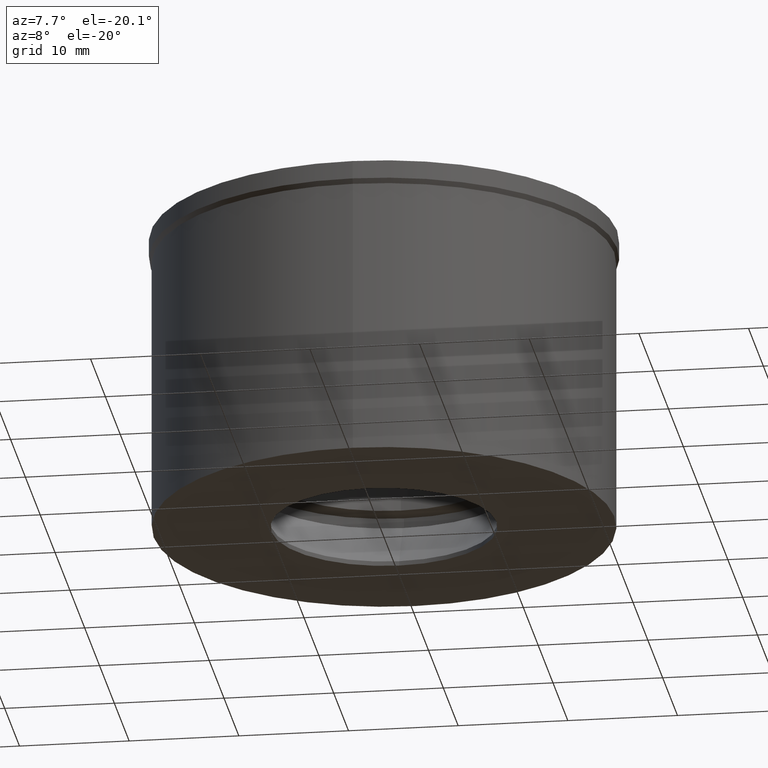
[diagram: clean part render]
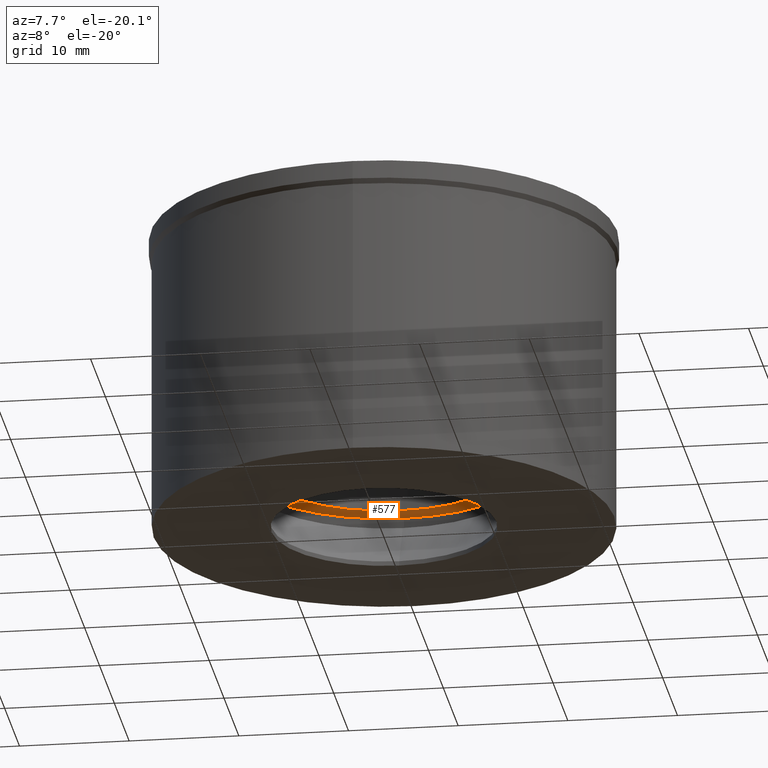
[diagram: same view with one face highlighted and labeled with its STEP entity id]
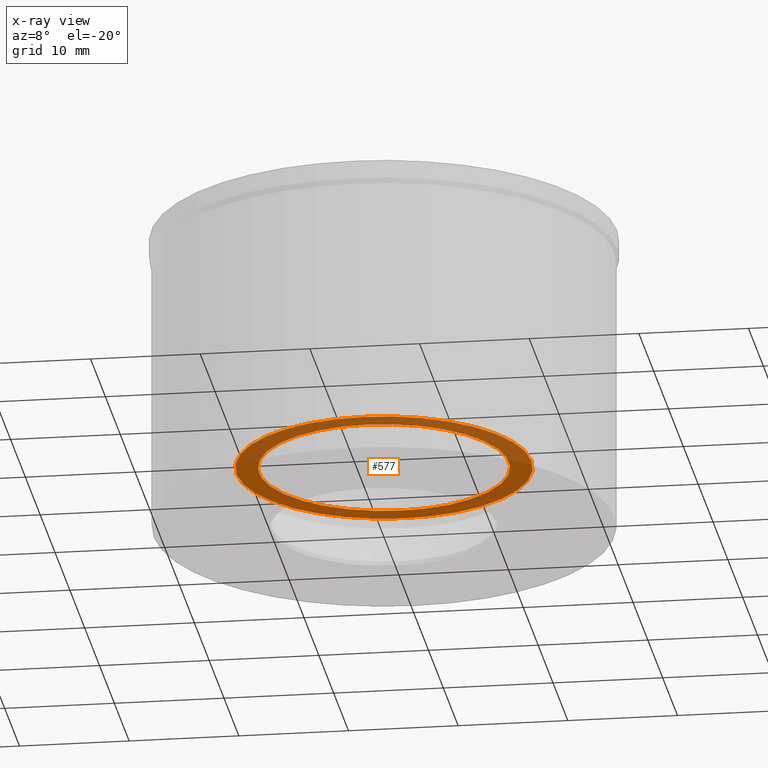
[diagram: x-ray of the same camera — body ghosted, the highlighted face saturated]
A machine part, auxiliary view. The second image highlights one B-rep face of the part: STEP entity #577.
The next image is the same camera in x-ray: the body ghosted, the highlighted face saturated — about 77% of this face is hidden behind the body in this view.
In plain terms, the highlighted planar face has unit normal (0, 0, -1).
Its self-contained STEP definition (entity closure, byte-faithful):
#124=CARTESIAN_POINT('',(0.E0,0.E0,-2.18E1));
#125=DIRECTION('',(0.E0,0.E0,1.E0));
#126=DIRECTION('',(0.E0,-1.E0,0.E0));
#127=AXIS2_PLACEMENT_3D('',#124,#125,#126);
#132=CARTESIAN_POINT('',(0.E0,0.E0,-2.18E1));
#133=DIRECTION('',(0.E0,0.E0,1.E0));
#134=DIRECTION('',(0.E0,1.E0,0.E0));
#135=AXIS2_PLACEMENT_3D('',#132,#133,#134);
#140=CARTESIAN_POINT('',(0.E0,0.E0,-2.18E1));
#141=DIRECTION('',(0.E0,0.E0,-1.E0));
#142=DIRECTION('',(0.E0,-1.E0,0.E0));
#143=AXIS2_PLACEMENT_3D('',#140,#141,#142);
#148=CARTESIAN_POINT('',(0.E0,0.E0,-2.18E1));
#149=DIRECTION('',(0.E0,0.E0,-1.E0));
#150=DIRECTION('',(0.E0,1.E0,0.E0));
#151=AXIS2_PLACEMENT_3D('',#148,#149,#150);
#404=CARTESIAN_POINT('',(0.E0,1.14E1,-2.18E1));
#405=VERTEX_POINT('',#404);
#406=CARTESIAN_POINT('',(0.E0,-1.14E1,-2.18E1));
#407=VERTEX_POINT('',#406);
#408=CARTESIAN_POINT('',(0.E0,-1.345E1,-2.18E1));
#409=CARTESIAN_POINT('',(0.E0,1.345E1,-2.18E1));
#410=VERTEX_POINT('',#408);
#411=VERTEX_POINT('',#409);
#562=CARTESIAN_POINT('',(0.E0,0.E0,-2.18E1));
#563=DIRECTION('',(0.E0,0.E0,-1.E0));
#564=DIRECTION('',(0.E0,-1.E0,0.E0));
#565=AXIS2_PLACEMENT_3D('',#562,#563,#564);
#566=PLANE('',#565);
#568=ORIENTED_EDGE('',*,*,#567,.T.);
#570=ORIENTED_EDGE('',*,*,#569,.T.);
#571=EDGE_LOOP('',(#568,#570));
#572=FACE_OUTER_BOUND('',#571,.F.);
#573=ORIENTED_EDGE('',*,*,#555,.T.);
#574=ORIENTED_EDGE('',*,*,#544,.T.);
#575=EDGE_LOOP('',(#573,#574));
#576=FACE_BOUND('',#575,.F.);
#128=CIRCLE('',#127,1.345E1);
#136=CIRCLE('',#135,1.345E1);
#144=CIRCLE('',#143,1.14E1);
#152=CIRCLE('',#151,1.14E1);
#544=EDGE_CURVE('',#405,#407,#152,.T.);
#555=EDGE_CURVE('',#407,#405,#144,.T.);
#567=EDGE_CURVE('',#410,#411,#128,.T.);
#569=EDGE_CURVE('',#411,#410,#136,.T.);
#577=ADVANCED_FACE('',(#572,#576),#566,.T.);